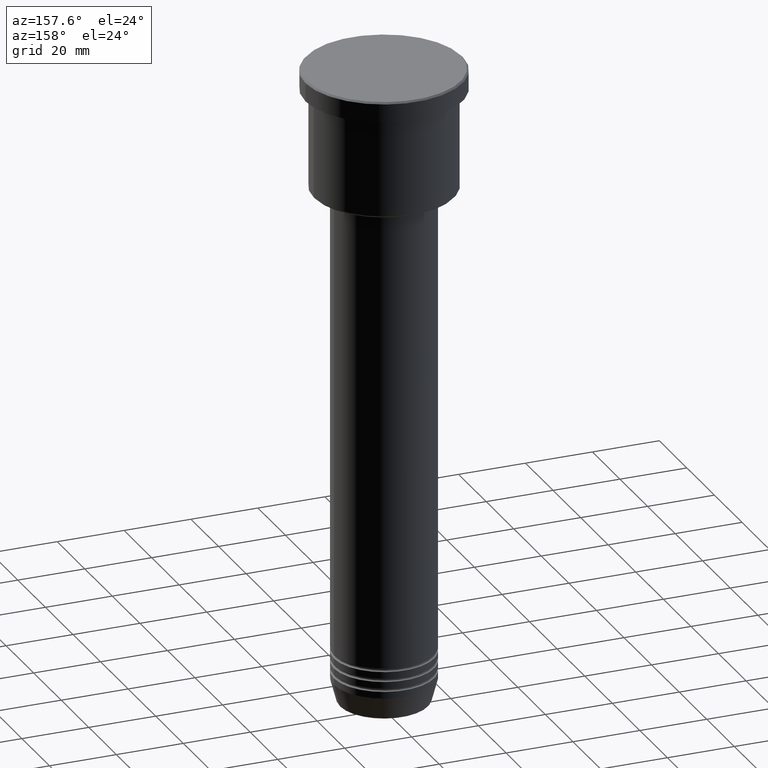
[diagram: clean part render]
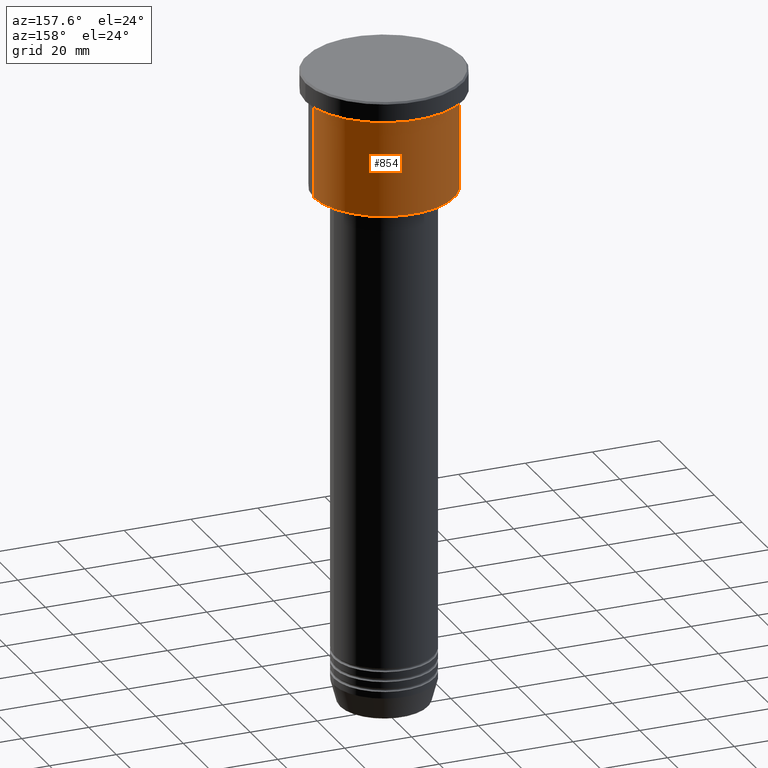
[diagram: same view with one face highlighted and labeled with its STEP entity id]
A machine part, auxiliary view. The second image highlights one B-rep face of the part: STEP entity #854.
In plain terms, the highlighted cylindrical surface (partial cylindrical patch) has radius 21 mm, axis along (-0, -0, 1).
Its self-contained STEP definition (entity closure, byte-faithful):
#10 = CARTESIAN_POINT ( 'NONE',  ( -21.00000000000000000, 2.571758278209441661E-15, -6.999999999999994671 ) ) ;
#18 = DIRECTION ( 'NONE',  ( -0.000000000000000000, -0.000000000000000000, 1.000000000000000000 ) ) ;
#29 = DIRECTION ( 'NONE',  ( -0.000000000000000000, -0.000000000000000000, 1.000000000000000000 ) ) ;
#40 = CARTESIAN_POINT ( 'NONE',  ( 21.00000000000000000, 0.000000000000000000, -35.49999999999999289 ) ) ;
#67 = DIRECTION ( 'NONE',  ( -0.000000000000000000, -0.000000000000000000, 1.000000000000000000 ) ) ;
#117 = AXIS2_PLACEMENT_3D ( 'NONE', #706, #67, #440 ) ;
#217 = VERTEX_POINT ( 'NONE', #40 ) ;
#230 = DIRECTION ( 'NONE',  ( -0.000000000000000000, -0.000000000000000000, 1.000000000000000000 ) ) ;
#251 = VERTEX_POINT ( 'NONE', #299 ) ;
#268 = DIRECTION ( 'NONE',  ( -0.000000000000000000, -0.000000000000000000, 1.000000000000000000 ) ) ;
#279 = CIRCLE ( 'NONE', #941, 21.00000000000000000 ) ;
#299 = CARTESIAN_POINT ( 'NONE',  ( 21.00000000000000000, 0.000000000000000000, -6.999999999999994671 ) ) ;
#415 = AXIS2_PLACEMENT_3D ( 'NONE', #732, #268, #807 ) ;
#434 = LINE ( 'NONE', #797, #702 ) ;
#440 = DIRECTION ( 'NONE',  ( -1.000000000000000000, 0.000000000000000000, 0.000000000000000000 ) ) ;
#514 = ORIENTED_EDGE ( 'NONE', *, *, #639, .T. ) ;
#532 = ORIENTED_EDGE ( 'NONE', *, *, #1018, .F. ) ;
#575 = LINE ( 'NONE', #936, #1051 ) ;
#614 = EDGE_CURVE ( 'NONE', #217, #251, #575, .T. ) ;
#639 = EDGE_CURVE ( 'NONE', #217, #853, #938, .T. ) ;
#701 = EDGE_LOOP ( 'NONE', ( #514, #965, #532, #963 ) ) ;
#702 = VECTOR ( 'NONE', #230, 1000.000000000000000 ) ;
#706 = CARTESIAN_POINT ( 'NONE',  ( 0.000000000000000000, 0.000000000000000000, -35.49999999999999289 ) ) ;
#732 = CARTESIAN_POINT ( 'NONE',  ( 0.000000000000000000, 0.000000000000000000, 0.000000000000000000 ) ) ;
#745 = CARTESIAN_POINT ( 'NONE',  ( -21.00000000000000000, 2.571758278209441661E-15, -35.49999999999999289 ) ) ;
#767 = CARTESIAN_POINT ( 'NONE',  ( 0.000000000000000000, 0.000000000000000000, -6.999999999999994671 ) ) ;
#797 = CARTESIAN_POINT ( 'NONE',  ( -21.00000000000000000, 2.571758278209441661E-15, 0.000000000000000000 ) ) ;
#807 = DIRECTION ( 'NONE',  ( 1.000000000000000000, 0.000000000000000000, 0.000000000000000000 ) ) ;
#839 = VERTEX_POINT ( 'NONE', #10 ) ;
#853 = VERTEX_POINT ( 'NONE', #745 ) ;
#854 = ADVANCED_FACE ( 'NONE', ( #1182 ), #1088, .T. ) ;
#857 = DIRECTION ( 'NONE',  ( 1.000000000000000000, 0.000000000000000000, 0.000000000000000000 ) ) ;
#936 = CARTESIAN_POINT ( 'NONE',  ( 21.00000000000000000, 0.000000000000000000, 0.000000000000000000 ) ) ;
#938 = CIRCLE ( 'NONE', #117, 21.00000000000000000 ) ;
#941 = AXIS2_PLACEMENT_3D ( 'NONE', #767, #29, #857 ) ;
#963 = ORIENTED_EDGE ( 'NONE', *, *, #614, .F. ) ;
#965 = ORIENTED_EDGE ( 'NONE', *, *, #1181, .T. ) ;
#1018 = EDGE_CURVE ( 'NONE', #251, #839, #279, .T. ) ;
#1051 = VECTOR ( 'NONE', #18, 1000.000000000000000 ) ;
#1088 = CYLINDRICAL_SURFACE ( 'NONE', #415, 21.00000000000000000 ) ;
#1181 = EDGE_CURVE ( 'NONE', #853, #839, #434, .T. ) ;
#1182 = FACE_OUTER_BOUND ( 'NONE', #701, .T. ) ;